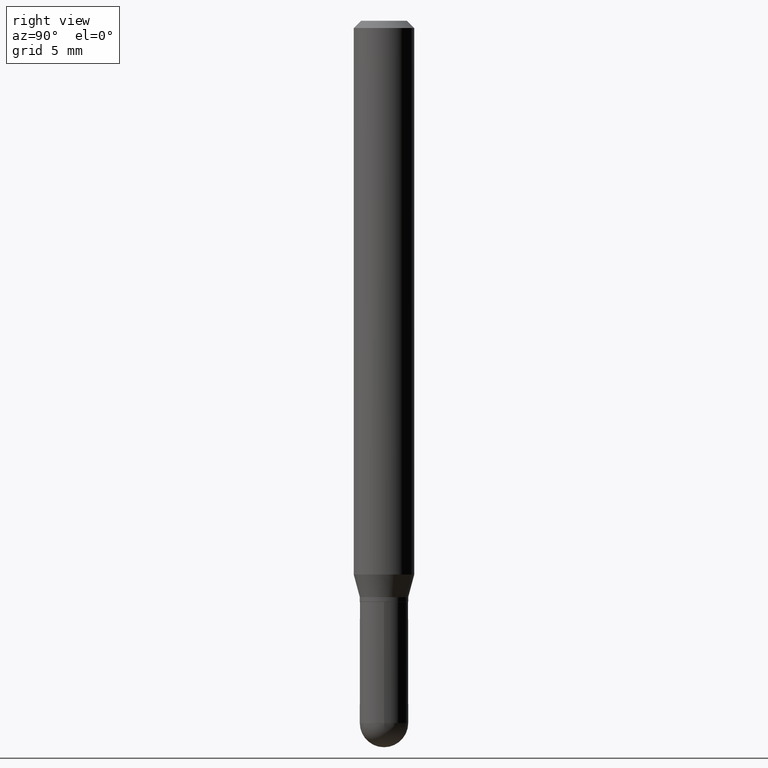
[diagram: clean part render]
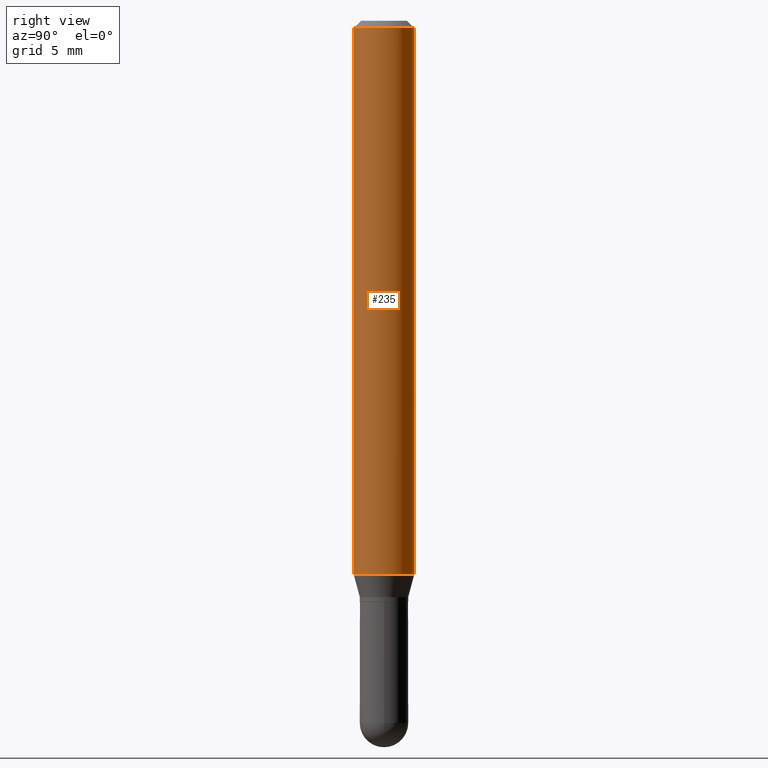
[diagram: same view with one face highlighted and labeled with its STEP entity id]
A machine part, right view. The second image highlights one B-rep face of the part: STEP entity #235.
In plain terms, the highlighted cylindrical surface (edge-blend (fillet) strip) has radius 1.5875 mm, axis along (-0, 0, 1).
Its self-contained STEP definition (entity closure, byte-faithful):
#4 = DIRECTION ( 'NONE',  ( -2.445455409142924430E-29, 3.491500524170105647E-15, 1.000000000000000000 ) ) ;
#12 = CARTESIAN_POINT ( 'NONE',  ( 0.000000000000000000, 0.000000000000000000, 0.000000000000000000 ) ) ;
#72 = CIRCLE ( 'NONE', #338, 0.06250000000000000000 ) ;
#77 = ORIENTED_EDGE ( 'NONE', *, *, #82, .T. ) ;
#82 = EDGE_CURVE ( 'NONE', #403, #176, #353, .T. ) ;
#90 = DIRECTION ( 'NONE',  ( -2.445455409142924430E-29, 3.491500524170105647E-15, 1.000000000000000000 ) ) ;
#94 = DIRECTION ( 'NONE',  ( -2.445455409142924430E-29, 3.491500524170105647E-15, 1.000000000000000000 ) ) ;
#115 = DIRECTION ( 'NONE',  ( -2.445455409142924430E-29, 3.491500524170106041E-15, 1.000000000000000000 ) ) ;
#117 = VECTOR ( 'NONE', #115, 39.37007874015748143 ) ;
#125 = FACE_OUTER_BOUND ( 'NONE', #384, .T. ) ;
#127 = DIRECTION ( 'NONE',  ( -6.982962677686265922E-15, -1.000000000000000000, 3.483106191921935554E-15 ) ) ;
#136 = DIRECTION ( 'NONE',  ( -6.982962677686265922E-15, -1.000000000000000000, 3.491500524170105647E-15 ) ) ;
#147 = CARTESIAN_POINT ( 'NONE',  ( 4.440892098500904235E-16, 0.06249999999999599626, -1.143349364905389853 ) ) ;
#165 = DIRECTION ( 'NONE',  ( -6.982962677686265922E-15, -1.000000000000000000, 4.370956789862821150E-15 ) ) ;
#170 = CARTESIAN_POINT ( 'NONE',  ( 3.668183113714388746E-31, -5.237250786255162143E-17, -0.01500000000000000812 ) ) ;
#174 = AXIS2_PLACEMENT_3D ( 'NONE', #12, #90, #136 ) ;
#176 = VERTEX_POINT ( 'NONE', #299 ) ;
#179 = ORIENTED_EDGE ( 'NONE', *, *, #333, .F. ) ;
#185 = CARTESIAN_POINT ( 'NONE',  ( -4.364351673553916201E-16, -0.06250000000000000000, 2.182187827606316029E-16 ) ) ;
#210 = AXIS2_PLACEMENT_3D ( 'NONE', #170, #94, #127 ) ;
#216 = CARTESIAN_POINT ( 'NONE',  ( 2.796009888948012250E-29, -3.992004906876724635E-15, -1.143349364905389409 ) ) ;
#228 = EDGE_CURVE ( 'NONE', #273, #403, #72, .T. ) ;
#235 = ADVANCED_FACE ( 'NONE', ( #125 ), #373, .T. ) ;
#240 = EDGE_CURVE ( 'NONE', #294, #176, #500, .T. ) ;
#270 = DIRECTION ( 'NONE',  ( -2.445455409142924430E-29, 3.491500524170106041E-15, 1.000000000000000000 ) ) ;
#273 = VERTEX_POINT ( 'NONE', #365 ) ;
#275 = CARTESIAN_POINT ( 'NONE',  ( 4.440892098500625669E-16, 0.06250000000000000000, -2.182187827606316029E-16 ) ) ;
#294 = VERTEX_POINT ( 'NONE', #415 ) ;
#299 = CARTESIAN_POINT ( 'NONE',  ( 4.440892098500907193E-16, 0.06249999999999995143, -0.01500000000000022669 ) ) ;
#318 = VECTOR ( 'NONE', #270, 39.37007874015748143 ) ;
#333 = EDGE_CURVE ( 'NONE', #273, #294, #348, .T. ) ;
#338 = AXIS2_PLACEMENT_3D ( 'NONE', #216, #4, #165 ) ;
#348 = LINE ( 'NONE', #185, #318 ) ;
#351 = ORIENTED_EDGE ( 'NONE', *, *, #228, .T. ) ;
#353 = LINE ( 'NONE', #275, #117 ) ;
#365 = CARTESIAN_POINT ( 'NONE',  ( -4.364351673553637142E-16, -0.06250000000000399680, -1.143349364905389187 ) ) ;
#373 = CYLINDRICAL_SURFACE ( 'NONE', #174, 0.06250000000000000000 ) ;
#384 = EDGE_LOOP ( 'NONE', ( #351, #77, #470, #179 ) ) ;
#403 = VERTEX_POINT ( 'NONE', #147 ) ;
#415 = CARTESIAN_POINT ( 'NONE',  ( -4.364351673553912750E-16, -0.06250000000000005551, -0.01499999999999979128 ) ) ;
#470 = ORIENTED_EDGE ( 'NONE', *, *, #240, .F. ) ;
#500 = CIRCLE ( 'NONE', #210, 0.06250000000000000000 ) ;